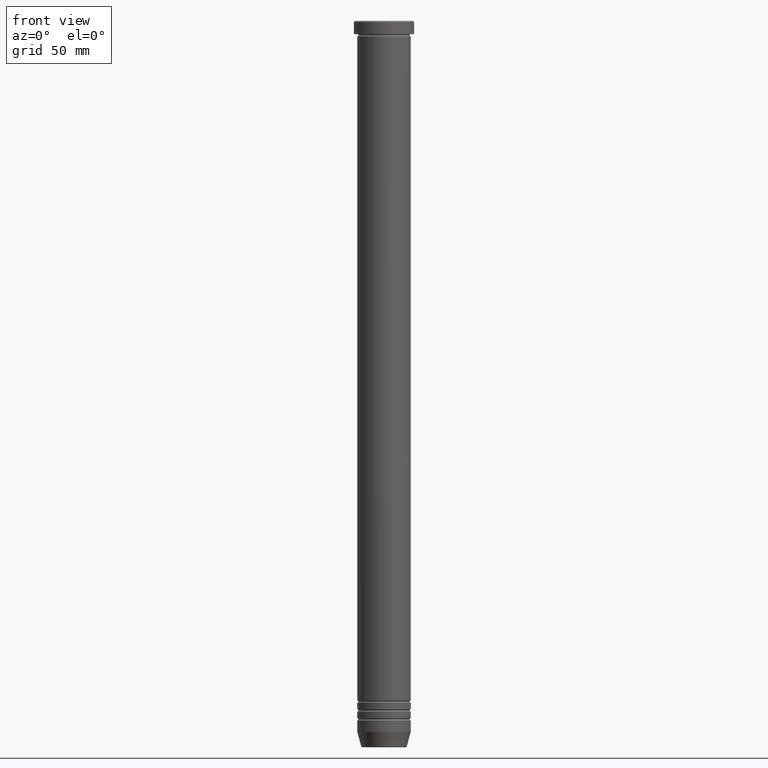
[diagram: clean part render]
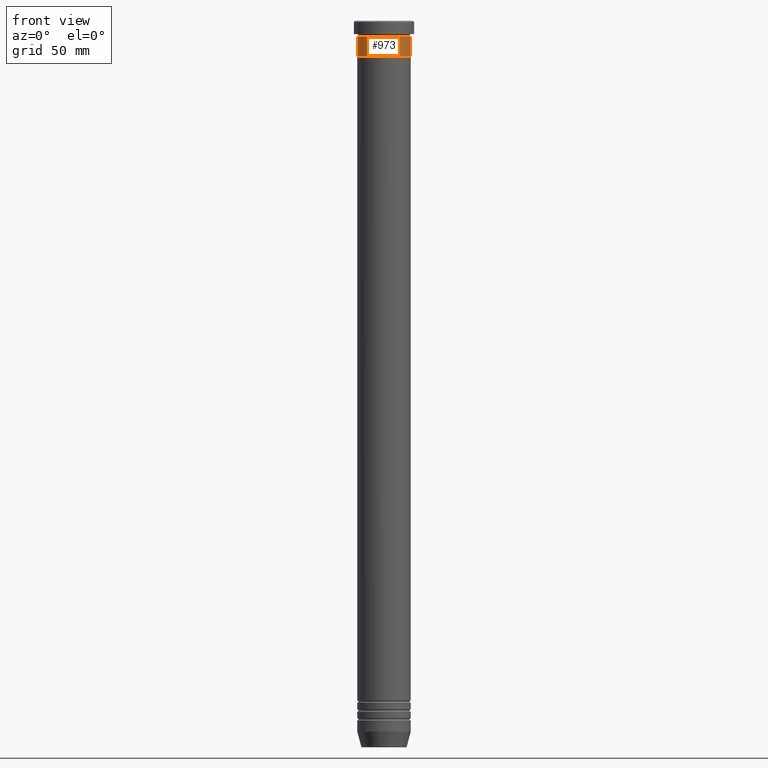
[diagram: same view with one face highlighted and labeled with its STEP entity id]
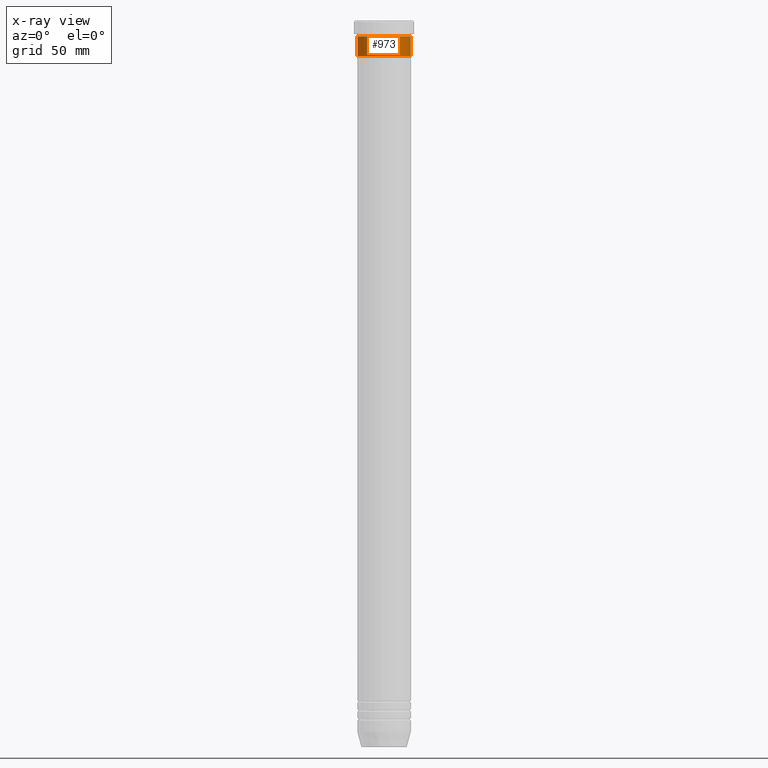
[diagram: x-ray of the same camera — body ghosted, the highlighted face saturated]
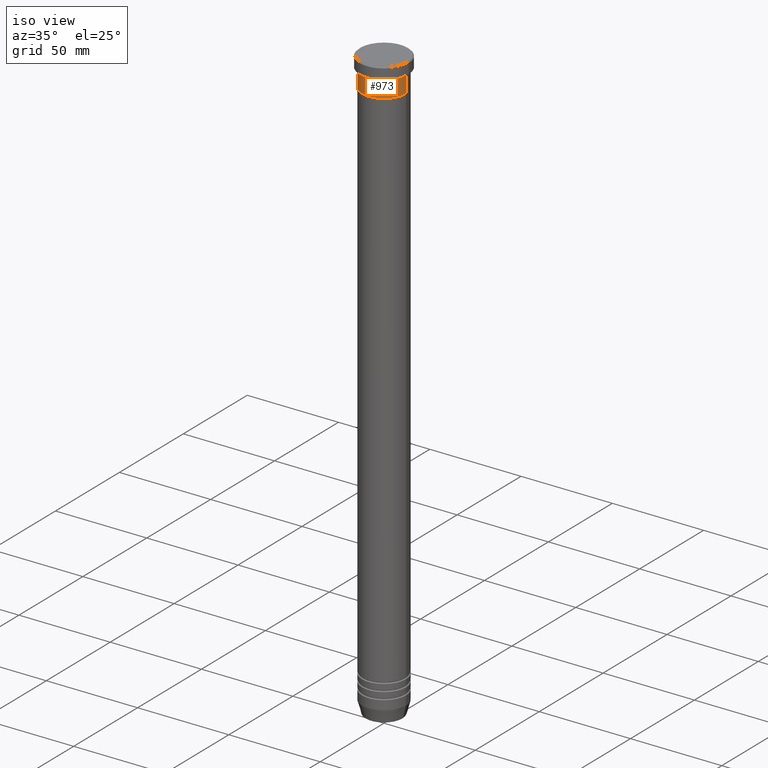
[diagram: same view with one face highlighted and labeled with its STEP entity id]
A machine part, front view. The second image highlights one B-rep face of the part: STEP entity #973.
The next image is the same camera in x-ray: the body ghosted, the highlighted face saturated — about 0% of this face is hidden behind the body in this view.
A second angle (iso view) of the same face is appended — the face is thin or edge-on in the first view.
In plain terms, the highlighted cylindrical surface (edge-blend (fillet) strip) has radius 12 mm, axis along (-0, -0, 1).
Its self-contained STEP definition (entity closure, byte-faithful):
#57 = VERTEX_POINT ( 'NONE', #808 ) ;
#64 = ORIENTED_EDGE ( 'NONE', *, *, #839, .T. ) ;
#125 = VERTEX_POINT ( 'NONE', #134 ) ;
#134 = CARTESIAN_POINT ( 'NONE',  ( 12.00000000000000000, 0.000000000000000000, -16.00000000000000000 ) ) ;
#162 = VECTOR ( 'NONE', #552, 1000.000000000000000 ) ;
#192 = CARTESIAN_POINT ( 'NONE',  ( 12.00000000000000000, 0.000000000000000000, -6.999999999999999112 ) ) ;
#204 = DIRECTION ( 'NONE',  ( -0.000000000000000000, -0.000000000000000000, 1.000000000000000000 ) ) ;
#205 = AXIS2_PLACEMENT_3D ( 'NONE', #366, #274, #643 ) ;
#274 = DIRECTION ( 'NONE',  ( -0.000000000000000000, -0.000000000000000000, 1.000000000000000000 ) ) ;
#281 = EDGE_CURVE ( 'NONE', #57, #845, #746, .T. ) ;
#299 = CARTESIAN_POINT ( 'NONE',  ( -12.00000000000000000, 1.469576158976823947E-15, 0.000000000000000000 ) ) ;
#312 = CIRCLE ( 'NONE', #205, 12.00000000000000000 ) ;
#366 = CARTESIAN_POINT ( 'NONE',  ( 0.000000000000000000, 0.000000000000000000, -16.00000000000000000 ) ) ;
#416 = CARTESIAN_POINT ( 'NONE',  ( -12.00000000000000000, 1.469576158976823947E-15, -16.00000000000000000 ) ) ;
#423 = DIRECTION ( 'NONE',  ( -0.000000000000000000, -0.000000000000000000, 1.000000000000000000 ) ) ;
#426 = DIRECTION ( 'NONE',  ( 1.000000000000000000, 0.000000000000000000, 0.000000000000000000 ) ) ;
#466 = AXIS2_PLACEMENT_3D ( 'NONE', #690, #423, #426 ) ;
#476 = LINE ( 'NONE', #299, #162 ) ;
#490 = EDGE_LOOP ( 'NONE', ( #515, #896, #64, #511 ) ) ;
#511 = ORIENTED_EDGE ( 'NONE', *, *, #281, .F. ) ;
#515 = ORIENTED_EDGE ( 'NONE', *, *, #1107, .F. ) ;
#552 = DIRECTION ( 'NONE',  ( -0.000000000000000000, -0.000000000000000000, 1.000000000000000000 ) ) ;
#603 = DIRECTION ( 'NONE',  ( 1.000000000000000000, 0.000000000000000000, 0.000000000000000000 ) ) ;
#610 = AXIS2_PLACEMENT_3D ( 'NONE', #927, #933, #603 ) ;
#621 = VERTEX_POINT ( 'NONE', #416 ) ;
#625 = FACE_OUTER_BOUND ( 'NONE', #490, .T. ) ;
#643 = DIRECTION ( 'NONE',  ( 1.000000000000000000, 0.000000000000000000, 0.000000000000000000 ) ) ;
#690 = CARTESIAN_POINT ( 'NONE',  ( 0.000000000000000000, 0.000000000000000000, 0.000000000000000000 ) ) ;
#746 = CIRCLE ( 'NONE', #610, 12.00000000000000000 ) ;
#754 = EDGE_CURVE ( 'NONE', #621, #125, #312, .T. ) ;
#808 = CARTESIAN_POINT ( 'NONE',  ( -12.00000000000000000, 1.469576158976823947E-15, -6.999999999999999112 ) ) ;
#839 = EDGE_CURVE ( 'NONE', #125, #845, #1059, .T. ) ;
#845 = VERTEX_POINT ( 'NONE', #192 ) ;
#896 = ORIENTED_EDGE ( 'NONE', *, *, #754, .T. ) ;
#927 = CARTESIAN_POINT ( 'NONE',  ( 0.000000000000000000, 0.000000000000000000, -6.999999999999999112 ) ) ;
#933 = DIRECTION ( 'NONE',  ( -0.000000000000000000, -0.000000000000000000, 1.000000000000000000 ) ) ;
#952 = CYLINDRICAL_SURFACE ( 'NONE', #466, 12.00000000000000000 ) ;
#973 = ADVANCED_FACE ( 'NONE', ( #625 ), #952, .T. ) ;
#979 = CARTESIAN_POINT ( 'NONE',  ( 12.00000000000000000, 0.000000000000000000, 0.000000000000000000 ) ) ;
#1059 = LINE ( 'NONE', #979, #1116 ) ;
#1107 = EDGE_CURVE ( 'NONE', #621, #57, #476, .T. ) ;
#1116 = VECTOR ( 'NONE', #204, 1000.000000000000000 ) ;